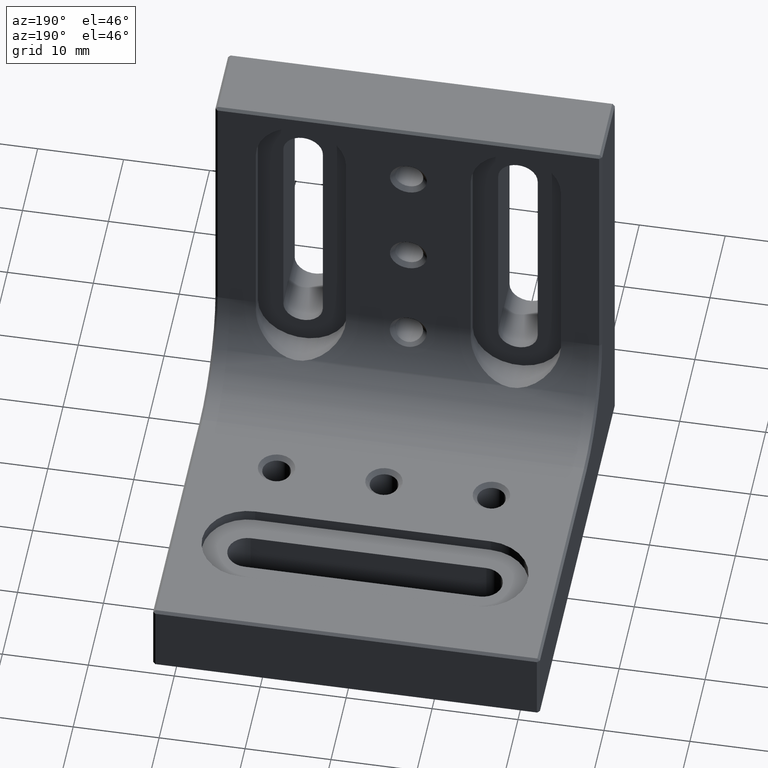
[diagram: clean part render]
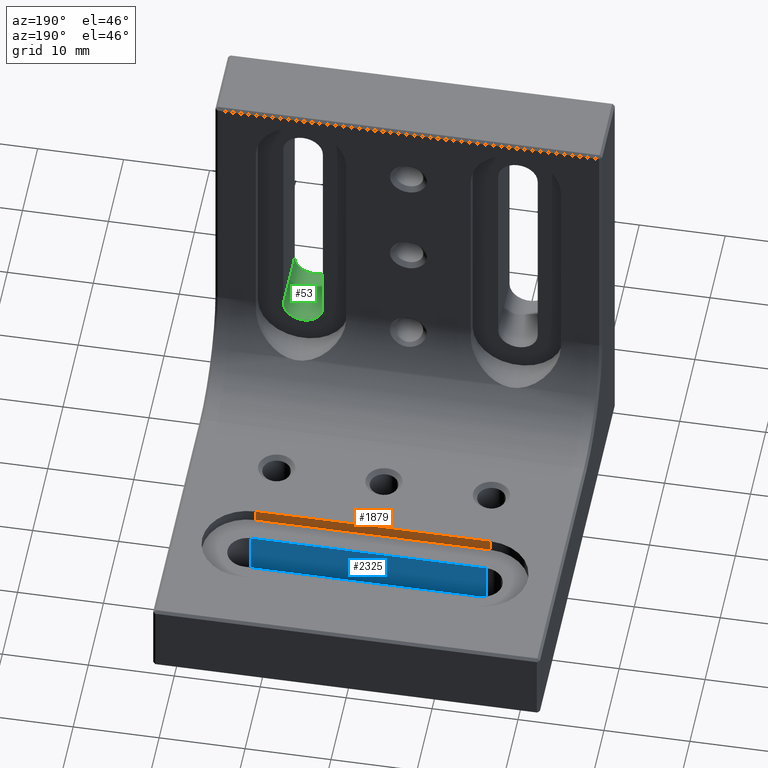
[diagram: same view with three faces highlighted in distinct colors, each labeled with its STEP entity id]
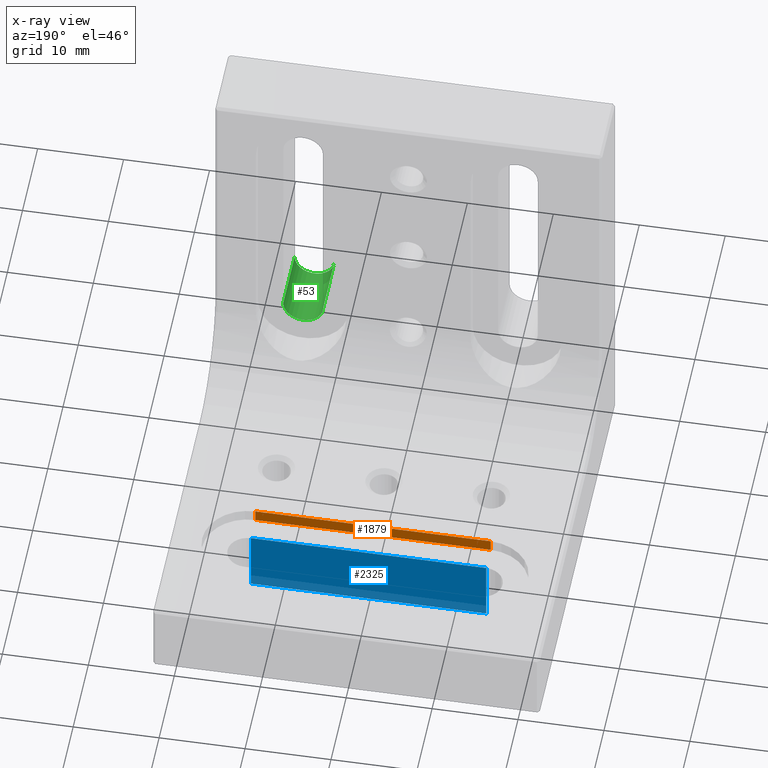
[diagram: x-ray of the same camera — body ghosted, the three highlighted faces saturated]
A machine part, auxiliary view with three faces highlighted in distinct colors.
The next image is the same camera in x-ray (body ghosted, the three faces saturated) — at least one of them is partly hidden behind the body in this view.
Their STEP definitions:

[orange] entity #1879 — the highlighted planar face has unit normal (0, -1, -0).
#52 = VECTOR ( 'NONE', #3369, 1000.000000000000000 ) ;
#229 = LINE ( 'NONE', #3647, #52 ) ;
#272 = LINE ( 'NONE', #2841, #1480 ) ;
#343 = VECTOR ( 'NONE', #1814, 1000.000000000000000 ) ;
#414 = VERTEX_POINT ( 'NONE', #1685 ) ;
#578 = CARTESIAN_POINT ( 'NONE',  ( -13.70000000000000107, 32.25000000000000000, 7.500000000000000000 ) ) ;
#595 = ORIENTED_EDGE ( 'NONE', *, *, #723, .F. ) ;
#631 = FACE_OUTER_BOUND ( 'NONE', #1672, .T. ) ;
#657 = CARTESIAN_POINT ( 'NONE',  ( 13.70000000000000107, 32.25000000000000000, 50.00000000000000000 ) ) ;
#684 = VERTEX_POINT ( 'NONE', #1751 ) ;
#723 = EDGE_CURVE ( 'NONE', #414, #3145, #3136, .T. ) ;
#740 = ORIENTED_EDGE ( 'NONE', *, *, #2176, .F. ) ;
#898 = DIRECTION ( 'NONE',  ( 1.000000000000000000, -0.000000000000000000, -0.000000000000000000 ) ) ;
#1017 = LINE ( 'NONE', #657, #343 ) ;
#1476 = AXIS2_PLACEMENT_3D ( 'NONE', #3492, #2405, #1794 ) ;
#1480 = VECTOR ( 'NONE', #2564, 1000.000000000000000 ) ;
#1672 = EDGE_LOOP ( 'NONE', ( #2368, #595, #2875, #740 ) ) ;
#1685 = CARTESIAN_POINT ( 'NONE',  ( -13.70000000000000107, 32.25000000000000000, 7.500000000000000000 ) ) ;
#1751 = CARTESIAN_POINT ( 'NONE',  ( 13.70000000000000107, 32.25000000000000000, 8.899999999999998579 ) ) ;
#1794 = DIRECTION ( 'NONE',  ( 0.000000000000000000, 0.000000000000000000, -1.000000000000000000 ) ) ;
#1814 = DIRECTION ( 'NONE',  ( 0.000000000000000000, 0.000000000000000000, -1.000000000000000000 ) ) ;
#1871 = PLANE ( 'NONE',  #1476 ) ;
#1879 = ADVANCED_FACE ( 'NONE', ( #631 ), #1871, .F. ) ;
#2176 = EDGE_CURVE ( 'NONE', #684, #3371, #272, .T. ) ;
#2368 = ORIENTED_EDGE ( 'NONE', *, *, #3365, .T. ) ;
#2405 = DIRECTION ( 'NONE',  ( 0.000000000000000000, -1.000000000000000000, -0.000000000000000000 ) ) ;
#2488 = CARTESIAN_POINT ( 'NONE',  ( -13.70000000000000107, 32.25000000000000000, 8.899999999999998579 ) ) ;
#2564 = DIRECTION ( 'NONE',  ( -1.000000000000000000, 0.000000000000000000, 0.000000000000000000 ) ) ;
#2572 = VECTOR ( 'NONE', #898, 1000.000000000000000 ) ;
#2595 = EDGE_CURVE ( 'NONE', #414, #3371, #229, .T. ) ;
#2841 = CARTESIAN_POINT ( 'NONE',  ( 22.50000000000000000, 32.25000000000000000, 8.899999999999998579 ) ) ;
#2875 = ORIENTED_EDGE ( 'NONE', *, *, #2595, .T. ) ;
#3136 = LINE ( 'NONE', #578, #2572 ) ;
#3145 = VERTEX_POINT ( 'NONE', #3157 ) ;
#3157 = CARTESIAN_POINT ( 'NONE',  ( 13.70000000000000107, 32.25000000000000000, 7.500000000000000000 ) ) ;
#3365 = EDGE_CURVE ( 'NONE', #684, #3145, #1017, .T. ) ;
#3369 = DIRECTION ( 'NONE',  ( -0.000000000000000000, -0.000000000000000000, 1.000000000000000000 ) ) ;
#3371 = VERTEX_POINT ( 'NONE', #2488 ) ;
#3492 = CARTESIAN_POINT ( 'NONE',  ( -13.70000000000000107, 32.25000000000000000, 50.00000000000000000 ) ) ;
#3647 = CARTESIAN_POINT ( 'NONE',  ( -13.70000000000000107, 32.25000000000000000, 50.00000000000000000 ) ) ;

[blue] entity #2325 — the highlighted planar face has unit normal (0, -1, -0).
#54 = PLANE ( 'NONE',  #3269 ) ;
#63 = DIRECTION ( 'NONE',  ( 1.000000000000000000, -0.000000000000000000, -0.000000000000000000 ) ) ;
#256 = LINE ( 'NONE', #1400, #3384 ) ;
#332 = FACE_OUTER_BOUND ( 'NONE', #2284, .T. ) ;
#352 = DIRECTION ( 'NONE',  ( 0.000000000000000000, 0.000000000000000000, -1.000000000000000000 ) ) ;
#565 = EDGE_CURVE ( 'NONE', #1423, #1483, #2573, .T. ) ;
#690 = CARTESIAN_POINT ( 'NONE',  ( -13.70000000000000107, 35.20000000000000284, 50.00000000000000000 ) ) ;
#760 = ORIENTED_EDGE ( 'NONE', *, *, #3095, .T. ) ;
#846 = CARTESIAN_POINT ( 'NONE',  ( -13.70000000000000107, 35.20000000000000284, 7.500000000000000000 ) ) ;
#1024 = ORIENTED_EDGE ( 'NONE', *, *, #1783, .T. ) ;
#1152 = CARTESIAN_POINT ( 'NONE',  ( 13.70000000000000107, 35.20000000000000284, 0.000000000000000000 ) ) ;
#1280 = LINE ( 'NONE', #690, #2149 ) ;
#1400 = CARTESIAN_POINT ( 'NONE',  ( 13.70000000000000107, 35.20000000000000284, 50.00000000000000000 ) ) ;
#1423 = VERTEX_POINT ( 'NONE', #1704 ) ;
#1483 = VERTEX_POINT ( 'NONE', #1152 ) ;
#1514 = DIRECTION ( 'NONE',  ( 0.000000000000000000, -1.000000000000000000, -0.000000000000000000 ) ) ;
#1653 = VERTEX_POINT ( 'NONE', #846 ) ;
#1693 = DIRECTION ( 'NONE',  ( 0.000000000000000000, 0.000000000000000000, -1.000000000000000000 ) ) ;
#1704 = CARTESIAN_POINT ( 'NONE',  ( -13.70000000000001172, 35.20000000000000284, 0.000000000000000000 ) ) ;
#1739 = CARTESIAN_POINT ( 'NONE',  ( -13.70000000000001172, 35.20000000000000284, 0.000000000000000000 ) ) ;
#1783 = EDGE_CURVE ( 'NONE', #1423, #1653, #1280, .T. ) ;
#1845 = VECTOR ( 'NONE', #63, 1000.000000000000000 ) ;
#1986 = DIRECTION ( 'NONE',  ( 1.000000000000000000, -0.000000000000000000, -0.000000000000000000 ) ) ;
#2149 = VECTOR ( 'NONE', #3190, 1000.000000000000000 ) ;
#2284 = EDGE_LOOP ( 'NONE', ( #3399, #3239, #1024, #760 ) ) ;
#2325 = ADVANCED_FACE ( 'NONE', ( #332 ), #54, .F. ) ;
#2511 = VECTOR ( 'NONE', #1986, 1000.000000000000000 ) ;
#2573 = LINE ( 'NONE', #1739, #2511 ) ;
#2764 = LINE ( 'NONE', #2882, #1845 ) ;
#2882 = CARTESIAN_POINT ( 'NONE',  ( -13.70000000000000107, 35.20000000000000284, 7.500000000000000000 ) ) ;
#2914 = CARTESIAN_POINT ( 'NONE',  ( -13.70000000000000107, 35.20000000000000284, 50.00000000000000000 ) ) ;
#3016 = VERTEX_POINT ( 'NONE', #3607 ) ;
#3095 = EDGE_CURVE ( 'NONE', #1653, #3016, #2764, .T. ) ;
#3190 = DIRECTION ( 'NONE',  ( -0.000000000000000000, -0.000000000000000000, 1.000000000000000000 ) ) ;
#3239 = ORIENTED_EDGE ( 'NONE', *, *, #565, .F. ) ;
#3269 = AXIS2_PLACEMENT_3D ( 'NONE', #2914, #1514, #352 ) ;
#3384 = VECTOR ( 'NONE', #1693, 1000.000000000000000 ) ;
#3399 = ORIENTED_EDGE ( 'NONE', *, *, #3467, .T. ) ;
#3467 = EDGE_CURVE ( 'NONE', #3016, #1483, #256, .T. ) ;
#3607 = CARTESIAN_POINT ( 'NONE',  ( 13.70000000000000107, 35.20000000000000284, 7.500000000000000000 ) ) ;

[green] entity #53 — the highlighted cylindrical surface (edge-blend (fillet) strip) has radius 2.3 mm, axis along (-0, 1, -0).
#53 = ADVANCED_FACE ( 'NONE', ( #1153 ), #853, .F. ) ;
#62 = DIRECTION ( 'NONE',  ( -0.000000000000000000, 1.000000000000000000, -0.000000000000000000 ) ) ;
#79 = EDGE_LOOP ( 'NONE', ( #142, #428, #3126, #2690 ) ) ;
#93 = LINE ( 'NONE', #3512, #1177 ) ;
#95 = VERTEX_POINT ( 'NONE', #610 ) ;
#142 = ORIENTED_EDGE ( 'NONE', *, *, #1941, .F. ) ;
#428 = ORIENTED_EDGE ( 'NONE', *, *, #1780, .F. ) ;
#610 = CARTESIAN_POINT ( 'NONE',  ( 10.20000000000000107, -6.938893903907228378E-15, 17.78999999999999559 ) ) ;
#758 = CIRCLE ( 'NONE', #3559, 2.299999999999999822 ) ;
#853 = CYLINDRICAL_SURFACE ( 'NONE', #2100, 2.299999999999999822 ) ;
#882 = LINE ( 'NONE', #1428, #2549 ) ;
#915 = DIRECTION ( 'NONE',  ( -0.000000000000000000, 1.000000000000000000, -0.000000000000000000 ) ) ;
#1153 = FACE_OUTER_BOUND ( 'NONE', #79, .T. ) ;
#1175 = VERTEX_POINT ( 'NONE', #3019 ) ;
#1177 = VECTOR ( 'NONE', #915, 1000.000000000000000 ) ;
#1193 = VERTEX_POINT ( 'NONE', #1323 ) ;
#1323 = CARTESIAN_POINT ( 'NONE',  ( 14.80000000000000249, 7.499999999999996447, 17.78999999999999559 ) ) ;
#1327 = CARTESIAN_POINT ( 'NONE',  ( 12.50000000000000000, 7.499999999999996447, 17.78999999999999559 ) ) ;
#1428 = CARTESIAN_POINT ( 'NONE',  ( 14.80000000000000426, -6.938893903907228378E-15, 17.78999999999999559 ) ) ;
#1443 = CARTESIAN_POINT ( 'NONE',  ( 10.20000000000000107, 7.499999999999996447, 17.78999999999999559 ) ) ;
#1472 = AXIS2_PLACEMENT_3D ( 'NONE', #1893, #2464, #2187 ) ;
#1595 = EDGE_CURVE ( 'NONE', #1175, #95, #3077, .T. ) ;
#1634 = EDGE_CURVE ( 'NONE', #1175, #1193, #882, .T. ) ;
#1745 = CARTESIAN_POINT ( 'NONE',  ( 12.50000000000000000, -6.938893903907228378E-15, 17.78999999999999559 ) ) ;
#1780 = EDGE_CURVE ( 'NONE', #95, #2065, #93, .T. ) ;
#1893 = CARTESIAN_POINT ( 'NONE',  ( 12.50000000000000000, -6.938893903907228378E-15, 17.78999999999999559 ) ) ;
#1941 = EDGE_CURVE ( 'NONE', #2065, #1193, #758, .T. ) ;
#2025 = DIRECTION ( 'NONE',  ( -0.000000000000000000, 1.000000000000000000, -0.000000000000000000 ) ) ;
#2065 = VERTEX_POINT ( 'NONE', #1443 ) ;
#2100 = AXIS2_PLACEMENT_3D ( 'NONE', #1745, #2025, #2537 ) ;
#2187 = DIRECTION ( 'NONE',  ( 0.000000000000000000, 0.000000000000000000, -1.000000000000000000 ) ) ;
#2464 = DIRECTION ( 'NONE',  ( 0.000000000000000000, 1.000000000000000000, -0.000000000000000000 ) ) ;
#2509 = DIRECTION ( 'NONE',  ( 0.000000000000000000, 0.000000000000000000, 1.000000000000000000 ) ) ;
#2537 = DIRECTION ( 'NONE',  ( 0.000000000000000000, 0.000000000000000000, 1.000000000000000000 ) ) ;
#2549 = VECTOR ( 'NONE', #62, 1000.000000000000000 ) ;
#2690 = ORIENTED_EDGE ( 'NONE', *, *, #1634, .T. ) ;
#2786 = DIRECTION ( 'NONE',  ( 0.000000000000000000, -1.000000000000000000, -1.224646799147353454E-16 ) ) ;
#3019 = CARTESIAN_POINT ( 'NONE',  ( 14.80000000000000426, -6.938893903907228378E-15, 17.78999999999999559 ) ) ;
#3077 = CIRCLE ( 'NONE', #1472, 2.300000000000001599 ) ;
#3126 = ORIENTED_EDGE ( 'NONE', *, *, #1595, .F. ) ;
#3512 = CARTESIAN_POINT ( 'NONE',  ( 10.20000000000000107, -6.938893903907228378E-15, 17.78999999999999559 ) ) ;
#3559 = AXIS2_PLACEMENT_3D ( 'NONE', #1327, #2786, #2509 ) ;